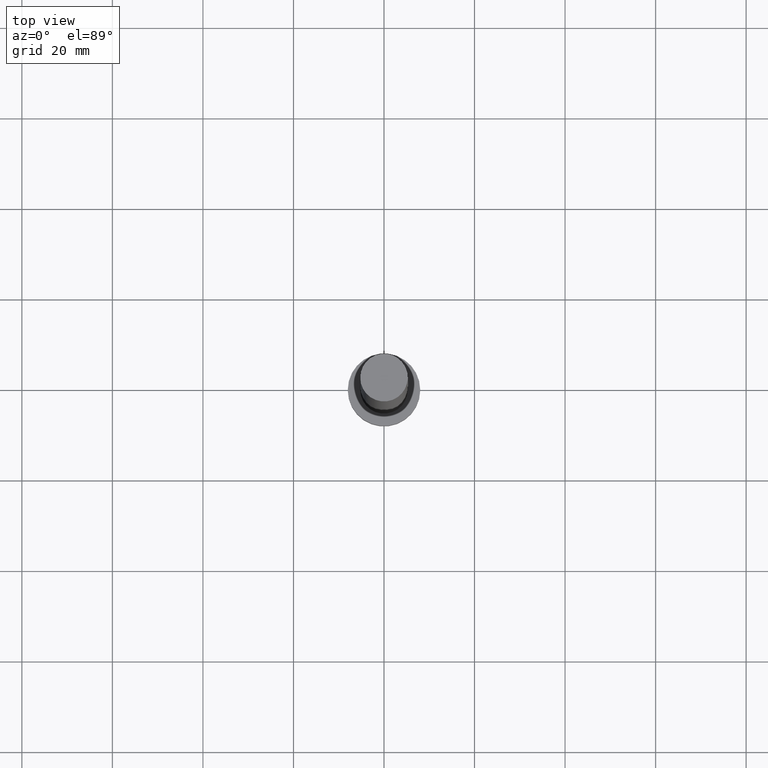
[diagram: clean part render]
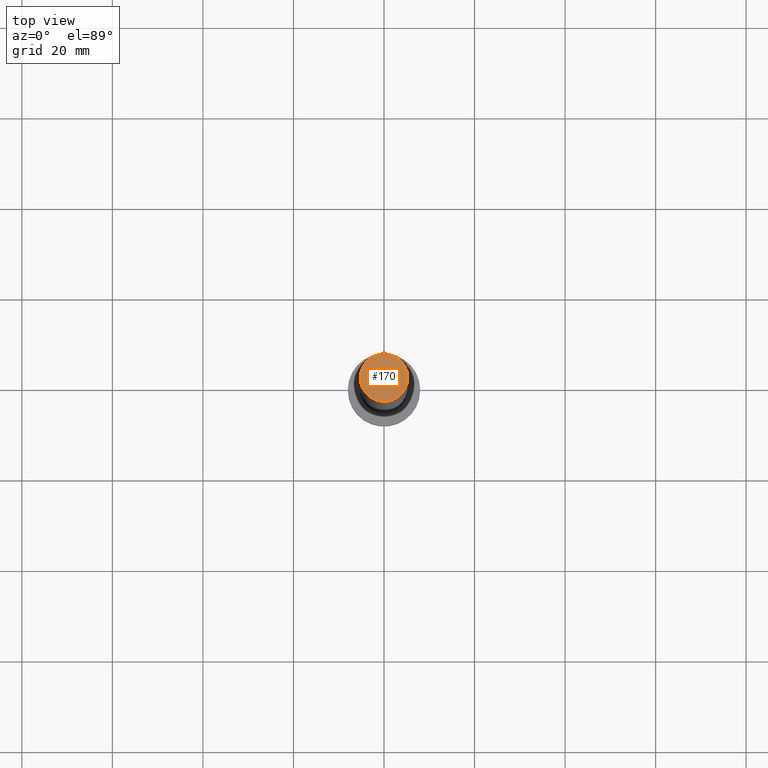
[diagram: same view with one face highlighted and labeled with its STEP entity id]
A machine part, top view. The second image highlights one B-rep face of the part: STEP entity #170.
In plain terms, the highlighted planar face has unit normal (0, 0, 1).
Its self-contained STEP definition (entity closure, byte-faithful):
#13 = DIRECTION ( 'NONE',  ( 0.000000000000000000, 0.000000000000000000, 1.000000000000000000 ) ) ;
#16 = AXIS2_PLACEMENT_3D ( 'NONE', #94, #113, #106 ) ;
#19 = VERTEX_POINT ( 'NONE', #120 ) ;
#26 = AXIS2_PLACEMENT_3D ( 'NONE', #201, #27, #104 ) ;
#27 = DIRECTION ( 'NONE',  ( 0.000000000000000000, 0.000000000000000000, 1.000000000000000000 ) ) ;
#37 = ORIENTED_EDGE ( 'NONE', *, *, #220, .T. ) ;
#47 = DIRECTION ( 'NONE',  ( 1.000000000000000000, 0.000000000000000000, 0.000000000000000000 ) ) ;
#93 = AXIS2_PLACEMENT_3D ( 'NONE', #241, #13, #47 ) ;
#94 = CARTESIAN_POINT ( 'NONE',  ( 0.000000000000000000, 0.000000000000000000, 160.0000000000000000 ) ) ;
#95 = VERTEX_POINT ( 'NONE', #159 ) ;
#104 = DIRECTION ( 'NONE',  ( 1.000000000000000000, 0.000000000000000000, 0.000000000000000000 ) ) ;
#106 = DIRECTION ( 'NONE',  ( 1.000000000000000000, 0.000000000000000000, -0.000000000000000000 ) ) ;
#113 = DIRECTION ( 'NONE',  ( 0.000000000000000000, 0.000000000000000000, 1.000000000000000000 ) ) ;
#120 = CARTESIAN_POINT ( 'NONE',  ( 5.250000000000000888, 6.429395695523605139E-16, 160.0000000000000000 ) ) ;
#159 = CARTESIAN_POINT ( 'NONE',  ( -5.250000000000000888, 0.000000000000000000, 160.0000000000000000 ) ) ;
#170 = ADVANCED_FACE ( 'NONE', ( #234 ), #186, .T. ) ;
#184 = EDGE_CURVE ( 'NONE', #95, #19, #228, .T. ) ;
#186 = PLANE ( 'NONE',  #16 ) ;
#201 = CARTESIAN_POINT ( 'NONE',  ( 0.000000000000000000, 0.000000000000000000, 160.0000000000000000 ) ) ;
#216 = CIRCLE ( 'NONE', #26, 5.250000000000000888 ) ;
#220 = EDGE_CURVE ( 'NONE', #19, #95, #216, .T. ) ;
#228 = CIRCLE ( 'NONE', #93, 5.250000000000000888 ) ;
#234 = FACE_OUTER_BOUND ( 'NONE', #244, .T. ) ;
#241 = CARTESIAN_POINT ( 'NONE',  ( 0.000000000000000000, 0.000000000000000000, 160.0000000000000000 ) ) ;
#244 = EDGE_LOOP ( 'NONE', ( #249, #37 ) ) ;
#249 = ORIENTED_EDGE ( 'NONE', *, *, #184, .T. ) ;